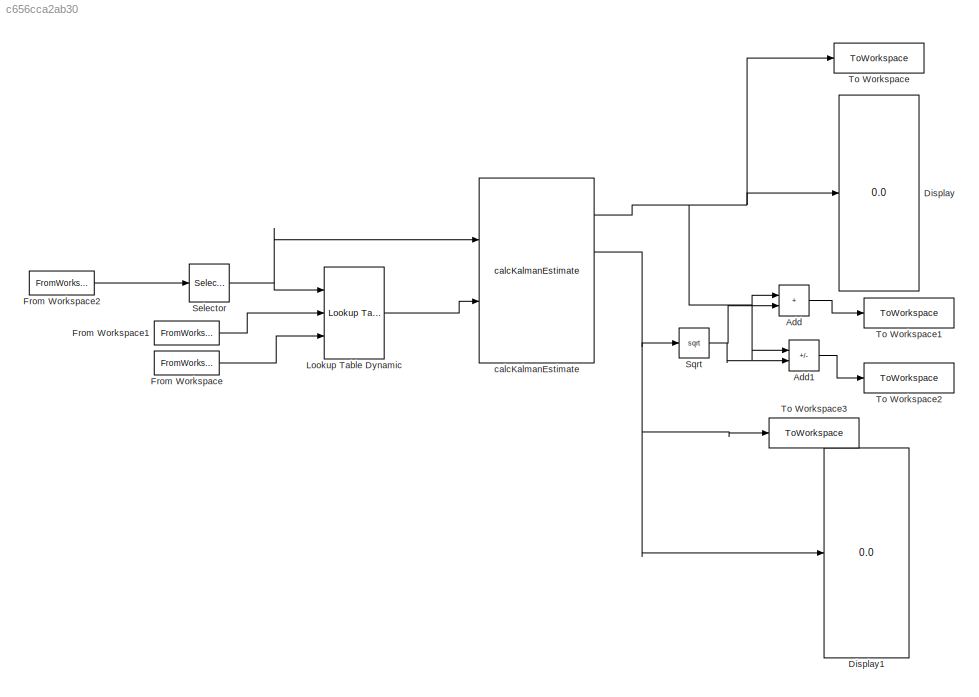
MODEL slx_c656cca2ab30
KIND model
CONFIG AbsTol = auto
CONFIG EnableMultiTasking = off
CONFIG FixedStep = kfgp.kfgpTimeStep*60/2
CONFIG MaxStep = auto
CONFIG MinStep = auto
CONFIG RelTol = 1e-3
CONFIG SampleTimeConstraint = Unconstrained
CONFIG SolverName = FixedStepAuto
CONFIG StartTime = 0.0
CONFIG StopTime = algFinTime*60
BLOCK [Sum] Add
  IconShape = rectangular
  Ports = [2, 1]
BLOCK [Sum] Add1
  IconShape = rectangular
  Inputs = +-
  Ports = [2, 1]
BLOCK [Display] Display
  Decimation = 1
  Ports = [1]
BLOCK [Display] Display1
  Decimation = 1
  Ports = [1]
BLOCK [FromWorkspace] From Workspace
  VariableName = synFlow
BLOCK [FromWorkspace] From Workspace1
  VariableName = synAlt
BLOCK [FromWorkspace] From Workspace2
  VariableName = zTraj
BLOCK [Reference] Lookup Table Dynamic  REF=simulink/Lookup
Tables/Lookup
Table
Dynamic
  Ports = [3, 1]
  SourceBlock = simulink/Lookup\nTables/Lookup\nTable\nDynamic
  SourceProductBaseCode = SL
  SourceType = Lookup Table Dynamic
BLOCK [Selector] Selector
  IndexOptions = Index vector (dialog)
  Indices = 1
  InputPortWidth = 2
  OutputSizes = 1
  Ports = [1, 1]
BLOCK [Sqrt] Sqrt
BLOCK [ToWorkspace] To Workspace
  FixptAsFi = on
  MaxDataPoints = inf
  Ports = [1]
  SampleTime = -1
  SaveFormat = Timeseries
  VariableName = predMean
BLOCK [ToWorkspace] To Workspace1
  FixptAsFi = on
  MaxDataPoints = inf
  Ports = [1]
  SampleTime = -1
  SaveFormat = Timeseries
  VariableName = upBound
BLOCK [ToWorkspace] To Workspace2
  FixptAsFi = on
  MaxDataPoints = inf
  Ports = [1]
  SampleTime = -1
  SaveFormat = Timeseries
  VariableName = loBound
BLOCK [ToWorkspace] To Workspace3
  FixptAsFi = on
  MaxDataPoints = inf
  Ports = [1]
  SampleTime = -1
  SaveFormat = Timeseries
  VariableName = postVar
BLOCK [Reference] calcKalmanEstimate  REF=calcKalmanEstimate_ul/calcKalmanEstimate
  Ports = [2, 4, 0, 1]
  SourceBlock = calcKalmanEstimate_ul/calcKalmanEstimate
LINE Add1:1 -> To Workspace2:1
LINE Add:1 -> To Workspace1:1
LINE From Workspace1:1 -> Lookup Table Dynamic:2
LINE From Workspace2:1 -> Selector:1
LINE From Workspace:1 -> Lookup Table Dynamic:3
LINE Lookup Table Dynamic:1 -> calcKalmanEstimate:2
NET Selector:1 -> Lookup Table Dynamic:1, calcKalmanEstimate:1
NET Sqrt:1 -> Add1:2, Add:2
NET calcKalmanEstimate:1 -> Add1:1, Add:1, Display:1, To Workspace:1
NET calcKalmanEstimate:2 -> Display1:1, Sqrt:1, To Workspace3:1
note: NET lines group one-source signal fan-out (src -> all destinations, sorted); 1:1 wires keep LINE
